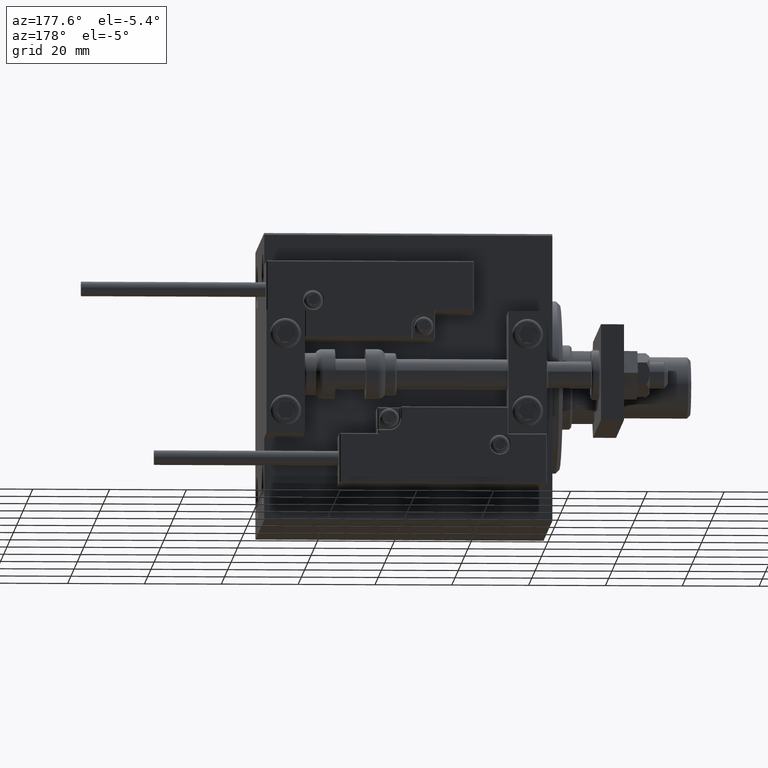
[diagram: clean part render]
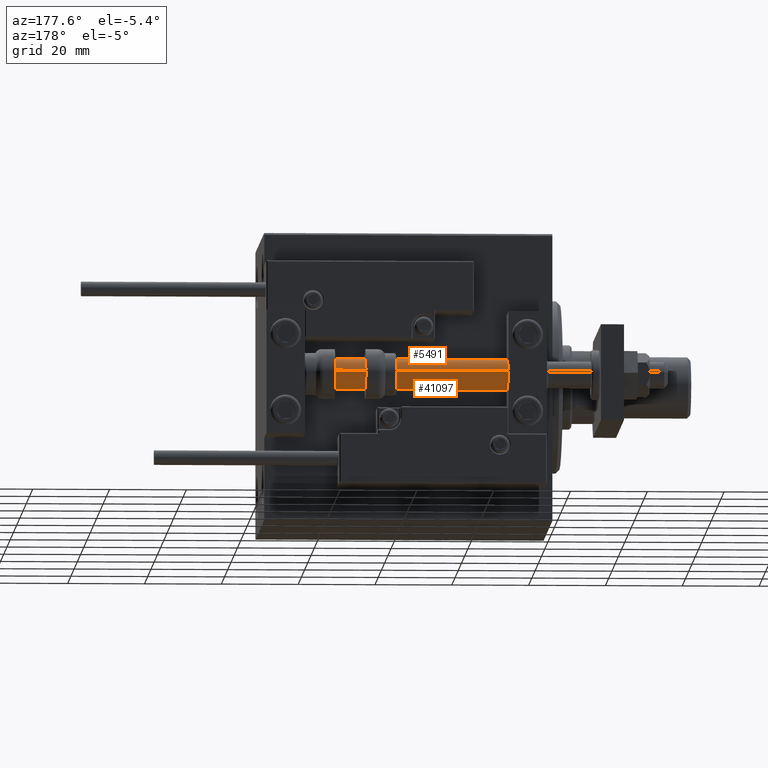
[diagram: same view with one multi-face feature highlighted, each face labeled with its STEP entity id]
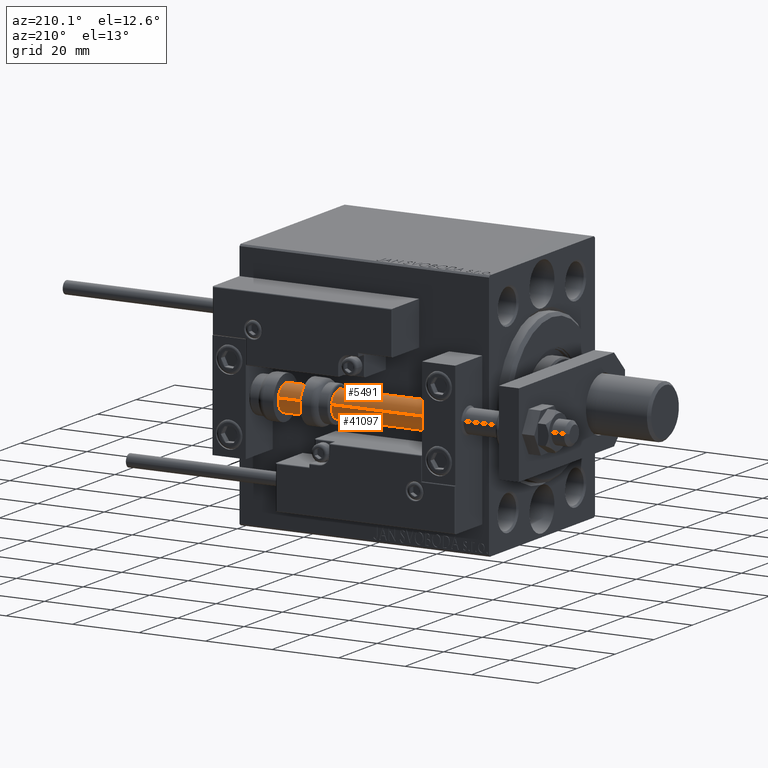
[diagram: same view with one multi-face feature highlighted, each face labeled with its STEP entity id]
A machine part, auxiliary view. The highlighted faces form ONE feature: a constant-radius fillet chain: 2 tangent blend faces with common blend radius 4 mm. The faces share edges in the B-rep.
A second angle (auxiliary view) of the same feature is appended — it is thin or edge-on in the first view.
Their STEP definitions:
[1] entity #5491 (Cylinder):
#51 = DIRECTION ( 'NONE',  ( -0.000000000000000000, -0.000000000000000000, -1.000000000000000000 ) ) ;
#1038 = VECTOR ( 'NONE', #31869, 1000.000000000000000 ) ;
#3451 = DIRECTION ( 'NONE',  ( -1.000000000000000000, 0.000000000000000000, 0.000000000000000000 ) ) ;
#5491 = ADVANCED_FACE ( 'NONE', ( #43805 ), #35240, .T. ) ;
#6974 = CIRCLE ( 'NONE', #36111, 4.000000000000000000 ) ;
#8272 = VERTEX_POINT ( 'NONE', #23769 ) ;
#8541 = CARTESIAN_POINT ( 'NONE',  ( 4.000000000000000000, 4.898587196589412829E-16, 2.000000000000029310 ) ) ;
#8898 = LINE ( 'NONE', #16719, #1038 ) ;
#8991 = EDGE_CURVE ( 'NONE', #28177, #45783, #14275, .T. ) ;
#10129 = EDGE_CURVE ( 'NONE', #22244, #28177, #8898, .T. ) ;
#11165 = DIRECTION ( 'NONE',  ( 1.000000000000000000, 0.000000000000000000, 0.000000000000000000 ) ) ;
#14275 = CIRCLE ( 'NONE', #41773, 4.000000000000000000 ) ;
#16015 = DIRECTION ( 'NONE',  ( -0.000000000000000000, -0.000000000000000000, -1.000000000000000000 ) ) ;
#16719 = CARTESIAN_POINT ( 'NONE',  ( 4.000000000000000000, 4.898587196589412829E-16, 75.00000000000000000 ) ) ;
#17239 = EDGE_LOOP ( 'NONE', ( #49545, #38902, #31334, #32747 ) ) ;
#21984 = DIRECTION ( 'NONE',  ( -0.000000000000000000, -0.000000000000000000, 1.000000000000000000 ) ) ;
#22244 = VERTEX_POINT ( 'NONE', #30768 ) ;
#23200 = VECTOR ( 'NONE', #16015, 1000.000000000000000 ) ;
#23769 = CARTESIAN_POINT ( 'NONE',  ( -4.000000000000000000, 0.000000000000000000, 75.00000000000000000 ) ) ;
#28177 = VERTEX_POINT ( 'NONE', #8541 ) ;
#28269 = LINE ( 'NONE', #35583, #23200 ) ;
#29277 = DIRECTION ( 'NONE',  ( 1.000000000000000000, 0.000000000000000000, 0.000000000000000000 ) ) ;
#30768 = CARTESIAN_POINT ( 'NONE',  ( 4.000000000000000000, 4.898587196589412829E-16, 75.00000000000000000 ) ) ;
#31070 = CARTESIAN_POINT ( 'NONE',  ( 0.000000000000000000, 0.000000000000000000, 75.00000000000000000 ) ) ;
#31334 = ORIENTED_EDGE ( 'NONE', *, *, #8991, .T. ) ;
#31869 = DIRECTION ( 'NONE',  ( -0.000000000000000000, -0.000000000000000000, -1.000000000000000000 ) ) ;
#31907 = AXIS2_PLACEMENT_3D ( 'NONE', #31070, #51, #3451 ) ;
#32747 = ORIENTED_EDGE ( 'NONE', *, *, #50235, .F. ) ;
#33206 = CARTESIAN_POINT ( 'NONE',  ( 0.000000000000000000, 0.000000000000000000, 2.000000000000029310 ) ) ;
#35240 = CYLINDRICAL_SURFACE ( 'NONE', #31907, 4.000000000000000000 ) ;
#35259 = EDGE_CURVE ( 'NONE', #22244, #8272, #6974, .T. ) ;
#35583 = CARTESIAN_POINT ( 'NONE',  ( -4.000000000000000000, 0.000000000000000000, 75.00000000000000000 ) ) ;
#36111 = AXIS2_PLACEMENT_3D ( 'NONE', #39800, #51540, #11165 ) ;
#38902 = ORIENTED_EDGE ( 'NONE', *, *, #10129, .T. ) ;
#39800 = CARTESIAN_POINT ( 'NONE',  ( 0.000000000000000000, 0.000000000000000000, 75.00000000000000000 ) ) ;
#41654 = CARTESIAN_POINT ( 'NONE',  ( -4.000000000000000000, 0.000000000000000000, 2.000000000000029310 ) ) ;
#41773 = AXIS2_PLACEMENT_3D ( 'NONE', #33206, #21984, #29277 ) ;
#43805 = FACE_OUTER_BOUND ( 'NONE', #17239, .T. ) ;
#45783 = VERTEX_POINT ( 'NONE', #41654 ) ;
#49545 = ORIENTED_EDGE ( 'NONE', *, *, #35259, .F. ) ;
#50235 = EDGE_CURVE ( 'NONE', #8272, #45783, #28269, .T. ) ;
#51540 = DIRECTION ( 'NONE',  ( 0.000000000000000000, 0.000000000000000000, 1.000000000000000000 ) ) ;
[2] entity #41097 (Cylinder):
#865 = EDGE_CURVE ( 'NONE', #45783, #28177, #43019, .T. ) ;
#1038 = VECTOR ( 'NONE', #31869, 1000.000000000000000 ) ;
#3832 = FACE_OUTER_BOUND ( 'NONE', #34154, .T. ) ;
#5296 = CARTESIAN_POINT ( 'NONE',  ( 0.000000000000000000, 0.000000000000000000, 75.00000000000000000 ) ) ;
#8272 = VERTEX_POINT ( 'NONE', #23769 ) ;
#8541 = CARTESIAN_POINT ( 'NONE',  ( 4.000000000000000000, 4.898587196589412829E-16, 2.000000000000029310 ) ) ;
#8898 = LINE ( 'NONE', #16719, #1038 ) ;
#8956 = DIRECTION ( 'NONE',  ( -0.000000000000000000, -0.000000000000000000, 1.000000000000000000 ) ) ;
#9716 = AXIS2_PLACEMENT_3D ( 'NONE', #35839, #8956, #44909 ) ;
#10129 = EDGE_CURVE ( 'NONE', #22244, #28177, #8898, .T. ) ;
#16015 = DIRECTION ( 'NONE',  ( -0.000000000000000000, -0.000000000000000000, -1.000000000000000000 ) ) ;
#16336 = AXIS2_PLACEMENT_3D ( 'NONE', #5296, #35113, #39772 ) ;
#16719 = CARTESIAN_POINT ( 'NONE',  ( 4.000000000000000000, 4.898587196589412829E-16, 75.00000000000000000 ) ) ;
#17346 = ORIENTED_EDGE ( 'NONE', *, *, #10129, .F. ) ;
#18695 = ORIENTED_EDGE ( 'NONE', *, *, #48104, .F. ) ;
#22014 = DIRECTION ( 'NONE',  ( 1.000000000000000000, 0.000000000000000000, 0.000000000000000000 ) ) ;
#22244 = VERTEX_POINT ( 'NONE', #30768 ) ;
#23120 = CIRCLE ( 'NONE', #31423, 4.000000000000000000 ) ;
#23200 = VECTOR ( 'NONE', #16015, 1000.000000000000000 ) ;
#23769 = CARTESIAN_POINT ( 'NONE',  ( -4.000000000000000000, 0.000000000000000000, 75.00000000000000000 ) ) ;
#28177 = VERTEX_POINT ( 'NONE', #8541 ) ;
#28269 = LINE ( 'NONE', #35583, #23200 ) ;
#28402 = ORIENTED_EDGE ( 'NONE', *, *, #50235, .T. ) ;
#29563 = CARTESIAN_POINT ( 'NONE',  ( 0.000000000000000000, 0.000000000000000000, 75.00000000000000000 ) ) ;
#30768 = CARTESIAN_POINT ( 'NONE',  ( 4.000000000000000000, 4.898587196589412829E-16, 75.00000000000000000 ) ) ;
#31423 = AXIS2_PLACEMENT_3D ( 'NONE', #29563, #45441, #22014 ) ;
#31869 = DIRECTION ( 'NONE',  ( -0.000000000000000000, -0.000000000000000000, -1.000000000000000000 ) ) ;
#34154 = EDGE_LOOP ( 'NONE', ( #17346, #18695, #28402, #50868 ) ) ;
#35113 = DIRECTION ( 'NONE',  ( -0.000000000000000000, -0.000000000000000000, -1.000000000000000000 ) ) ;
#35583 = CARTESIAN_POINT ( 'NONE',  ( -4.000000000000000000, 0.000000000000000000, 75.00000000000000000 ) ) ;
#35839 = CARTESIAN_POINT ( 'NONE',  ( 0.000000000000000000, 0.000000000000000000, 2.000000000000029310 ) ) ;
#39772 = DIRECTION ( 'NONE',  ( -1.000000000000000000, 0.000000000000000000, 0.000000000000000000 ) ) ;
#41097 = ADVANCED_FACE ( 'NONE', ( #3832 ), #47338, .T. ) ;
#41654 = CARTESIAN_POINT ( 'NONE',  ( -4.000000000000000000, 0.000000000000000000, 2.000000000000029310 ) ) ;
#43019 = CIRCLE ( 'NONE', #9716, 4.000000000000000000 ) ;
#44909 = DIRECTION ( 'NONE',  ( 1.000000000000000000, 0.000000000000000000, 0.000000000000000000 ) ) ;
#45441 = DIRECTION ( 'NONE',  ( 0.000000000000000000, 0.000000000000000000, 1.000000000000000000 ) ) ;
#45783 = VERTEX_POINT ( 'NONE', #41654 ) ;
#47338 = CYLINDRICAL_SURFACE ( 'NONE', #16336, 4.000000000000000000 ) ;
#48104 = EDGE_CURVE ( 'NONE', #8272, #22244, #23120, .T. ) ;
#50235 = EDGE_CURVE ( 'NONE', #8272, #45783, #28269, .T. ) ;
#50868 = ORIENTED_EDGE ( 'NONE', *, *, #865, .T. ) ;